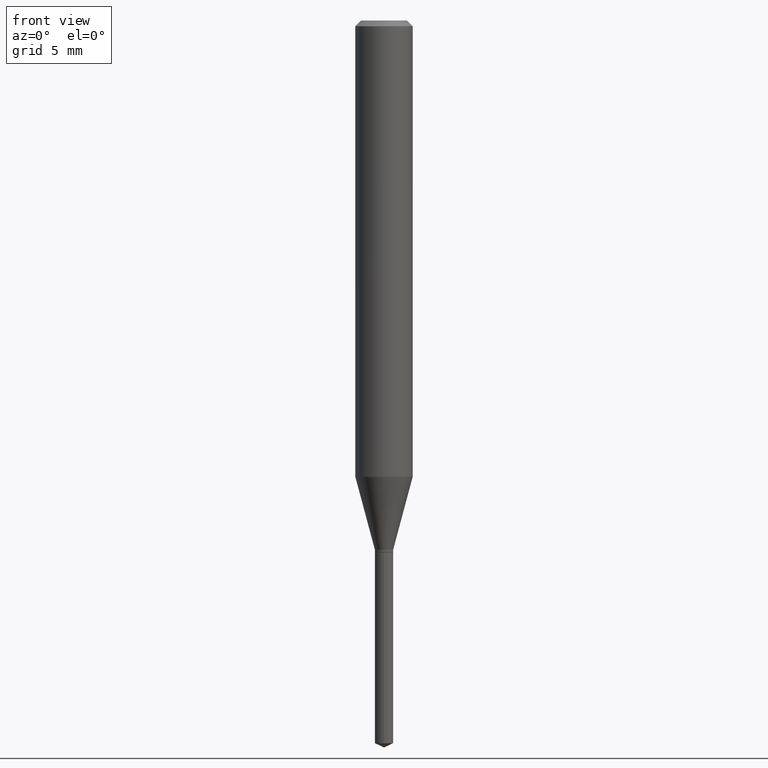
[diagram: clean part render]
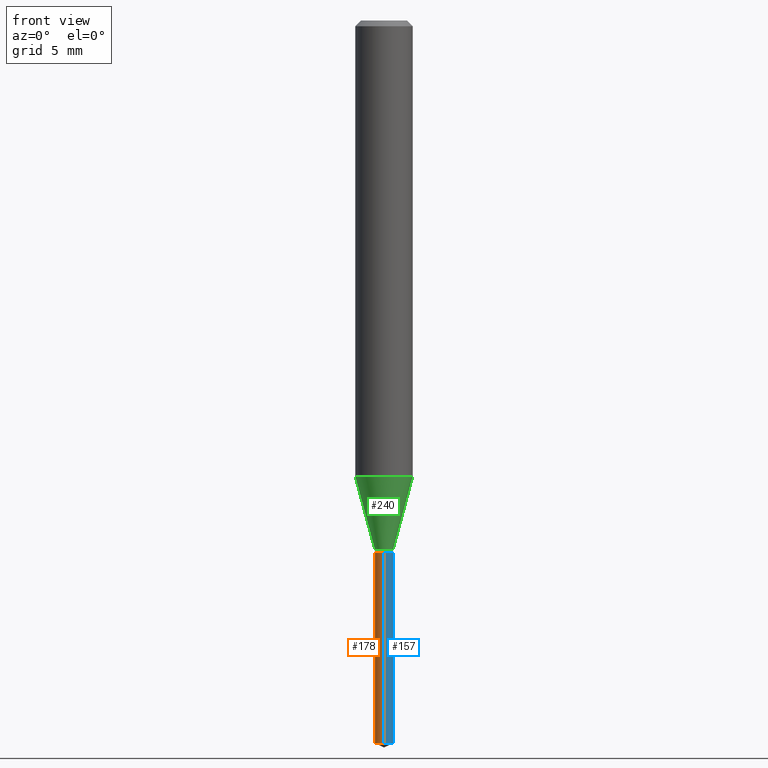
[diagram: same view with three faces highlighted in distinct colors, each labeled with its STEP entity id]
A machine part, front view with three faces highlighted in distinct colors.
Their STEP definitions:

[orange] entity #178 — the highlighted cylindrical surface (edge-blend (fillet) strip) has radius 0.4801 mm, axis along (-0, 0, 1).
#5 = CIRCLE ( 'NONE', #255, 0.01890000000000000013 ) ;
#7 = CYLINDRICAL_SURFACE ( 'NONE', #142, 0.01890000000000000013 ) ;
#38 = CARTESIAN_POINT ( 'NONE',  ( 1.342925770586952237E-16, 0.01889999999999479943, -1.487286785260870436 ) ) ;
#43 = EDGE_CURVE ( 'NONE', #168, #49, #5, .T. ) ;
#44 = DIRECTION ( 'NONE',  ( -2.445470214571802116E-29, 3.491479321953280158E-15, 1.000000000000000000 ) ) ;
#49 = VERTEX_POINT ( 'NONE', #415 ) ;
#62 = EDGE_LOOP ( 'NONE', ( #283, #275, #328, #243 ) ) ;
#90 = CIRCLE ( 'NONE', #182, 0.01890000000000000013 ) ;
#104 = VERTEX_POINT ( 'NONE', #38 ) ;
#131 = CARTESIAN_POINT ( 'NONE',  ( 2.676565608369631794E-29, -3.821426325363822773E-15, -1.094499999999999806 ) ) ;
#139 = EDGE_CURVE ( 'NONE', #104, #168, #187, .T. ) ;
#142 = AXIS2_PLACEMENT_3D ( 'NONE', #131, #44, #313 ) ;
#168 = VERTEX_POINT ( 'NONE', #464 ) ;
#178 = ADVANCED_FACE ( 'NONE', ( #316 ), #7, .T. ) ;
#182 = AXIS2_PLACEMENT_3D ( 'NONE', #289, #251, #395 ) ;
#187 = LINE ( 'NONE', #490, #286 ) ;
#202 = CARTESIAN_POINT ( 'NONE',  ( -1.319779946082436556E-16, -0.01890000000000382346, -1.094499999999999806 ) ) ;
#232 = CARTESIAN_POINT ( 'NONE',  ( 2.676565608369631794E-29, -3.821426325363822773E-15, -1.094499999999999806 ) ) ;
#233 = EDGE_CURVE ( 'NONE', #355, #49, #280, .T. ) ;
#242 = DIRECTION ( 'NONE',  ( -2.445470214571802396E-29, 3.491479321953280158E-15, 1.000000000000000000 ) ) ;
#243 = ORIENTED_EDGE ( 'NONE', *, *, #43, .F. ) ;
#251 = DIRECTION ( 'NONE',  ( -2.445470214571802116E-29, 3.491479321953280158E-15, 1.000000000000000000 ) ) ;
#255 = AXIS2_PLACEMENT_3D ( 'NONE', #232, #380, #420 ) ;
#275 = ORIENTED_EDGE ( 'NONE', *, *, #317, .T. ) ;
#280 = LINE ( 'NONE', #202, #358 ) ;
#283 = ORIENTED_EDGE ( 'NONE', *, *, #139, .F. ) ;
#286 = VECTOR ( 'NONE', #339, 39.37007874015748143 ) ;
#289 = CARTESIAN_POINT ( 'NONE',  ( 3.637113992402501246E-29, -5.192833264038655267E-15, -1.487286785260870436 ) ) ;
#313 = DIRECTION ( 'NONE',  ( -6.982962677686265922E-15, -1.000000000000000000, 0.000000000000000000 ) ) ;
#316 = FACE_OUTER_BOUND ( 'NONE', #62, .T. ) ;
#317 = EDGE_CURVE ( 'NONE', #104, #355, #90, .T. ) ;
#328 = ORIENTED_EDGE ( 'NONE', *, *, #233, .T. ) ;
#339 = DIRECTION ( 'NONE',  ( -2.445470214571802396E-29, 3.491479321953280158E-15, 1.000000000000000000 ) ) ;
#355 = VERTEX_POINT ( 'NONE', #440 ) ;
#358 = VECTOR ( 'NONE', #242, 39.37007874015748143 ) ;
#380 = DIRECTION ( 'NONE',  ( -2.445470214571802116E-29, 3.491479321953280158E-15, 1.000000000000000000 ) ) ;
#395 = DIRECTION ( 'NONE',  ( -6.982962677686265922E-15, -1.000000000000000000, 0.000000000000000000 ) ) ;
#415 = CARTESIAN_POINT ( 'NONE',  ( -1.319779946082436556E-16, -0.01890000000000382346, -1.094499999999999806 ) ) ;
#420 = DIRECTION ( 'NONE',  ( -6.982962677686265922E-15, -1.000000000000000000, 0.000000000000000000 ) ) ;
#440 = CARTESIAN_POINT ( 'NONE',  ( -1.319779946082340168E-16, -0.01890000000000518349, -1.487286785260870436 ) ) ;
#464 = CARTESIAN_POINT ( 'NONE',  ( 1.342925770586953716E-16, 0.01889999999999617680, -1.094499999999999806 ) ) ;
#490 = CARTESIAN_POINT ( 'NONE',  ( 1.342925770586856834E-16, 0.01889999999999617680, -1.094499999999999806 ) ) ;

[blue] entity #157 — the highlighted cylindrical surface (edge-blend (fillet) strip) has radius 0.4801 mm, axis along (-0, 0, 1).
#38 = CARTESIAN_POINT ( 'NONE',  ( 1.342925770586952237E-16, 0.01889999999999479943, -1.487286785260870436 ) ) ;
#49 = VERTEX_POINT ( 'NONE', #415 ) ;
#68 = CIRCLE ( 'NONE', #455, 0.01890000000000000013 ) ;
#100 = DIRECTION ( 'NONE',  ( -2.445470214571802116E-29, 3.491479321953280158E-15, 1.000000000000000000 ) ) ;
#104 = VERTEX_POINT ( 'NONE', #38 ) ;
#122 = AXIS2_PLACEMENT_3D ( 'NONE', #461, #352, #456 ) ;
#139 = EDGE_CURVE ( 'NONE', #104, #168, #187, .T. ) ;
#145 = ORIENTED_EDGE ( 'NONE', *, *, #233, .F. ) ;
#152 = FACE_OUTER_BOUND ( 'NONE', #435, .T. ) ;
#157 = ADVANCED_FACE ( 'NONE', ( #152 ), #272, .T. ) ;
#168 = VERTEX_POINT ( 'NONE', #464 ) ;
#184 = EDGE_CURVE ( 'NONE', #49, #168, #467, .T. ) ;
#187 = LINE ( 'NONE', #490, #286 ) ;
#192 = AXIS2_PLACEMENT_3D ( 'NONE', #309, #304, #269 ) ;
#202 = CARTESIAN_POINT ( 'NONE',  ( -1.319779946082436556E-16, -0.01890000000000382346, -1.094499999999999806 ) ) ;
#233 = EDGE_CURVE ( 'NONE', #355, #49, #280, .T. ) ;
#242 = DIRECTION ( 'NONE',  ( -2.445470214571802396E-29, 3.491479321953280158E-15, 1.000000000000000000 ) ) ;
#245 = EDGE_CURVE ( 'NONE', #355, #104, #68, .T. ) ;
#269 = DIRECTION ( 'NONE',  ( -6.982962677686265922E-15, -1.000000000000000000, 0.000000000000000000 ) ) ;
#272 = CYLINDRICAL_SURFACE ( 'NONE', #192, 0.01890000000000000013 ) ;
#280 = LINE ( 'NONE', #202, #358 ) ;
#282 = CARTESIAN_POINT ( 'NONE',  ( 3.637113992402501246E-29, -5.192833264038655267E-15, -1.487286785260870436 ) ) ;
#284 = DIRECTION ( 'NONE',  ( -6.982962677686265922E-15, -1.000000000000000000, 0.000000000000000000 ) ) ;
#286 = VECTOR ( 'NONE', #339, 39.37007874015748143 ) ;
#304 = DIRECTION ( 'NONE',  ( -2.445470214571802116E-29, 3.491479321953280158E-15, 1.000000000000000000 ) ) ;
#309 = CARTESIAN_POINT ( 'NONE',  ( 2.676565608369631794E-29, -3.821426325363822773E-15, -1.094499999999999806 ) ) ;
#314 = ORIENTED_EDGE ( 'NONE', *, *, #245, .T. ) ;
#339 = DIRECTION ( 'NONE',  ( -2.445470214571802396E-29, 3.491479321953280158E-15, 1.000000000000000000 ) ) ;
#352 = DIRECTION ( 'NONE',  ( -2.445470214571802116E-29, 3.491479321953280158E-15, 1.000000000000000000 ) ) ;
#355 = VERTEX_POINT ( 'NONE', #440 ) ;
#358 = VECTOR ( 'NONE', #242, 39.37007874015748143 ) ;
#369 = ORIENTED_EDGE ( 'NONE', *, *, #184, .F. ) ;
#415 = CARTESIAN_POINT ( 'NONE',  ( -1.319779946082436556E-16, -0.01890000000000382346, -1.094499999999999806 ) ) ;
#435 = EDGE_LOOP ( 'NONE', ( #314, #466, #369, #145 ) ) ;
#440 = CARTESIAN_POINT ( 'NONE',  ( -1.319779946082340168E-16, -0.01890000000000518349, -1.487286785260870436 ) ) ;
#455 = AXIS2_PLACEMENT_3D ( 'NONE', #282, #100, #284 ) ;
#456 = DIRECTION ( 'NONE',  ( -6.982962677686265922E-15, -1.000000000000000000, 0.000000000000000000 ) ) ;
#461 = CARTESIAN_POINT ( 'NONE',  ( 2.676565608369631794E-29, -3.821426325363822773E-15, -1.094499999999999806 ) ) ;
#464 = CARTESIAN_POINT ( 'NONE',  ( 1.342925770586953716E-16, 0.01889999999999617680, -1.094499999999999806 ) ) ;
#466 = ORIENTED_EDGE ( 'NONE', *, *, #139, .T. ) ;
#467 = CIRCLE ( 'NONE', #122, 0.01890000000000000013 ) ;
#490 = CARTESIAN_POINT ( 'NONE',  ( 1.342925770586856834E-16, 0.01889999999999617680, -1.094499999999999806 ) ) ;

[green] entity #240 — the highlighted conical surface has half-angle 15 deg.
#42 = LINE ( 'NONE', #347, #135 ) ;
#48 = DIRECTION ( 'NONE',  ( 1.000000000000000000, -6.982962677686258822E-15, 0.000000000000000000 ) ) ;
#82 = CIRCLE ( 'NONE', #287, 0.05905000000000011628 ) ;
#88 = ORIENTED_EDGE ( 'NONE', *, *, #110, .F. ) ;
#89 = VERTEX_POINT ( 'NONE', #452 ) ;
#96 = AXIS2_PLACEMENT_3D ( 'NONE', #459, #388, #48 ) ;
#110 = EDGE_CURVE ( 'NONE', #130, #285, #454, .T. ) ;
#117 = CARTESIAN_POINT ( 'NONE',  ( -0.01889999999999996197, -3.676310156154750318E-15, -1.088799999999999768 ) ) ;
#127 = EDGE_CURVE ( 'NONE', #89, #220, #42, .T. ) ;
#130 = VERTEX_POINT ( 'NONE', #117 ) ;
#135 = VECTOR ( 'NONE', #198, 39.37007874015747433 ) ;
#179 = DIRECTION ( 'NONE',  ( -2.445468806185136597E-29, 3.491481338843145583E-15, 1.000000000000000000 ) ) ;
#198 = DIRECTION ( 'NONE',  ( 0.2588190451025214611, 1.565188264969621573E-15, 0.9659258262890682012 ) ) ;
#220 = VERTEX_POINT ( 'NONE', #276 ) ;
#222 = DIRECTION ( 'NONE',  ( 1.000000000000000000, -6.982962677686258822E-15, 0.000000000000000000 ) ) ;
#225 = AXIS2_PLACEMENT_3D ( 'NONE', #368, #179, #222 ) ;
#238 = CARTESIAN_POINT ( 'NONE',  ( -0.01889999999999996197, -3.667232304673757710E-15, -1.088799999999999768 ) ) ;
#240 = ADVANCED_FACE ( 'NONE', ( #241 ), #311, .T. ) ;
#241 = FACE_OUTER_BOUND ( 'NONE', #297, .T. ) ;
#252 = ORIENTED_EDGE ( 'NONE', *, *, #360, .F. ) ;
#265 = CIRCLE ( 'NONE', #225, 0.01889999999999996197 ) ;
#276 = CARTESIAN_POINT ( 'NONE',  ( 0.05905000000000011628, -3.690698839977605827E-15, -0.9389581600761093272 ) ) ;
#278 = ORIENTED_EDGE ( 'NONE', *, *, #340, .T. ) ;
#285 = VERTEX_POINT ( 'NONE', #363 ) ;
#287 = AXIS2_PLACEMENT_3D ( 'NONE', #446, #335, #407 ) ;
#297 = EDGE_LOOP ( 'NONE', ( #88, #278, #404, #252 ) ) ;
#311 = CONICAL_SURFACE ( 'NONE', #96, 0.01889999999999996197, 0.2617993877991501295 ) ;
#335 = DIRECTION ( 'NONE',  ( -2.445468806185136597E-29, 3.491481338843145583E-15, 1.000000000000000000 ) ) ;
#340 = EDGE_CURVE ( 'NONE', #130, #89, #265, .T. ) ;
#347 = CARTESIAN_POINT ( 'NONE',  ( 0.01889999999999996197, -3.933502876340686458E-15, -1.088799999999999768 ) ) ;
#360 = EDGE_CURVE ( 'NONE', #285, #220, #82, .T. ) ;
#363 = CARTESIAN_POINT ( 'NONE',  ( -0.05905000000000011628, -2.858779408393891019E-15, -0.9389581600761093272 ) ) ;
#368 = CARTESIAN_POINT ( 'NONE',  ( 2.662626436174376212E-29, -3.801524881732416844E-15, -1.088799999999999768 ) ) ;
#388 = DIRECTION ( 'NONE',  ( -2.445468806185136597E-29, 3.491481338843145583E-15, 1.000000000000000000 ) ) ;
#400 = VECTOR ( 'NONE', #444, 39.37007874015747433 ) ;
#404 = ORIENTED_EDGE ( 'NONE', *, *, #127, .T. ) ;
#407 = DIRECTION ( 'NONE',  ( 1.000000000000000000, -6.982962677686266711E-15, 0.000000000000000000 ) ) ;
#444 = DIRECTION ( 'NONE',  ( -0.2588190451025214611, 5.211531920934551042E-15, 0.9659258262890682012 ) ) ;
#446 = CARTESIAN_POINT ( 'NONE',  ( 2.296192890779115262E-29, -3.278354893860230512E-15, -0.9389581600761093272 ) ) ;
#452 = CARTESIAN_POINT ( 'NONE',  ( 0.01889999999999996197, -3.933502876340686458E-15, -1.088799999999999768 ) ) ;
#454 = LINE ( 'NONE', #238, #400 ) ;
#459 = CARTESIAN_POINT ( 'NONE',  ( 2.662626436174376212E-29, -3.801524881732416844E-15, -1.088799999999999768 ) ) ;